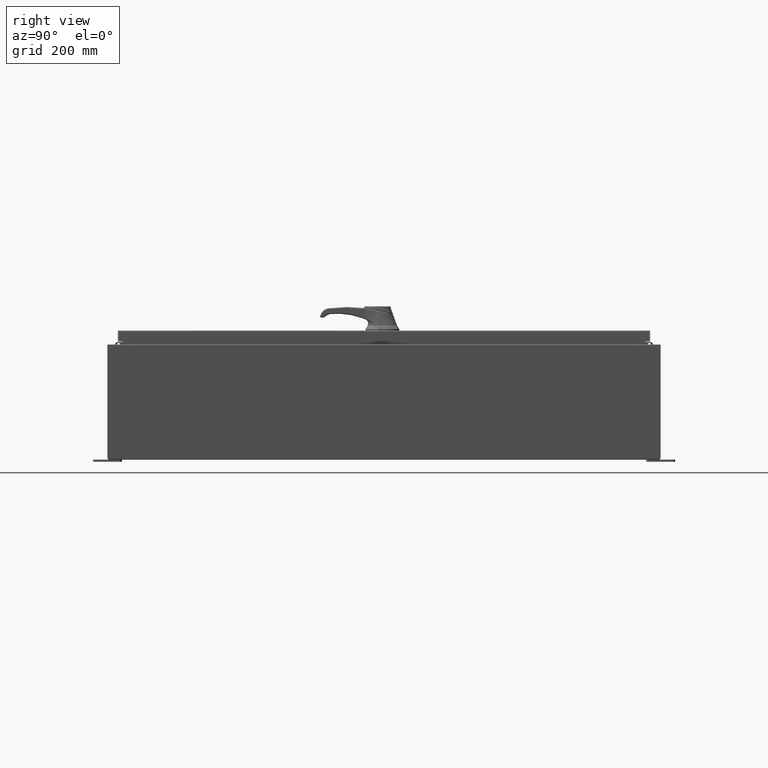
[diagram: clean part render]
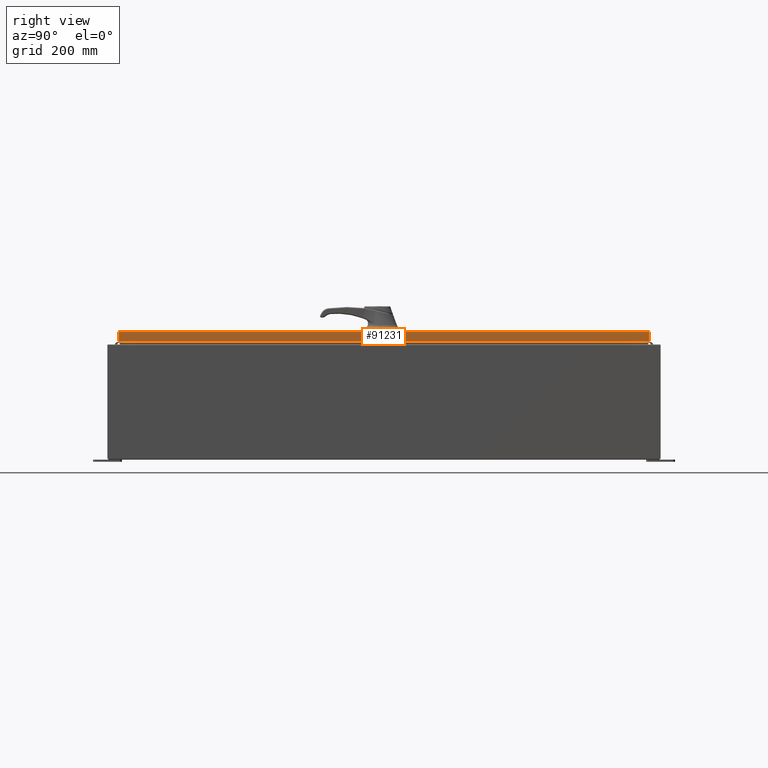
[diagram: same view with one face highlighted and labeled with its STEP entity id]
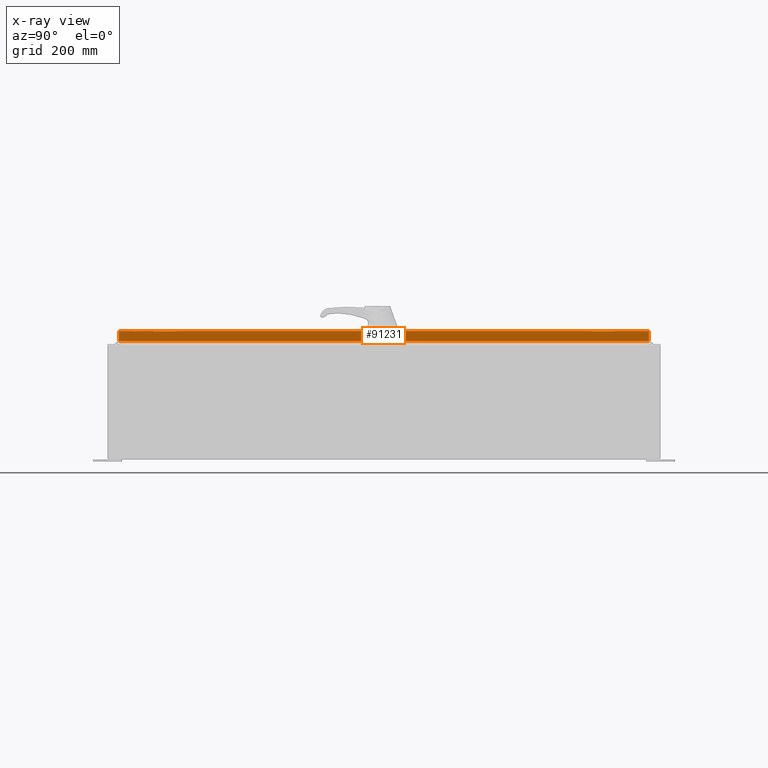
[diagram: x-ray of the same camera — body ghosted, the highlighted face saturated]
A machine part, right view. The second image highlights one B-rep face of the part: STEP entity #91231.
The next image is the same camera in x-ray: the body ghosted, the highlighted face saturated — about 0% of this face is hidden behind the body in this view.
In plain terms, the highlighted planar face has unit normal (1, 0, 0).
Its self-contained STEP definition (entity closure, byte-faithful):
#4995 = VECTOR ( 'NONE', #16505, 39.37007874015748100 ) ;
#6508 = CARTESIAN_POINT ( 'NONE',  ( 17.07799999999999900, 0.0000000000000000000, 4.350948112836224800E-014 ) ) ;
#16505 = DIRECTION ( 'NONE',  ( -2.532419924601866100E-015, -6.982962677686265900E-015, 1.000000000000000000 ) ) ;
#22223 = EDGE_LOOP ( 'NONE', ( #85445, #86889, #98122, #93936 ) ) ;
#22301 = CARTESIAN_POINT ( 'NONE',  ( 17.07799999999999900, -23.00515786437626900, -0.07469999999999980800 ) ) ;
#29092 = CARTESIAN_POINT ( 'NONE',  ( 17.07799999999999900, 0.0000000000000000000, -0.08770000000000008300 ) ) ;
#30249 = VERTEX_POINT ( 'NONE', #100197 ) ;
#33207 = LINE ( 'NONE', #29092, #60767 ) ;
#40034 = VECTOR ( 'NONE', #123669, 39.37007874015748100 ) ;
#42934 = EDGE_CURVE ( 'NONE', #108370, #77594, #60109, .T. ) ;
#47204 = CARTESIAN_POINT ( 'NONE',  ( 17.07799999999999900, 23.00515786437627600, 2.041536398895824600E-013 ) ) ;
#49824 = EDGE_CURVE ( 'NONE', #30249, #57386, #66137, .T. ) ;
#51103 = CARTESIAN_POINT ( 'NONE',  ( 17.07800000000000300, -23.09400000000000100, -0.9376999999999997600 ) ) ;
#52687 = EDGE_CURVE ( 'NONE', #77594, #57386, #33207, .T. ) ;
#52790 = AXIS2_PLACEMENT_3D ( 'NONE', #6508, #131106, #69005 ) ;
#57386 = VERTEX_POINT ( 'NONE', #131852 ) ;
#60109 = LINE ( 'NONE', #47204, #4995 ) ;
#60767 = VECTOR ( 'NONE', #101544, 39.37007874015748100 ) ;
#66137 = LINE ( 'NONE', #22301, #90473 ) ;
#69005 = DIRECTION ( 'NONE',  ( 2.532419924601866100E-015, 0.0000000000000000000, -1.000000000000000000 ) ) ;
#70329 = FACE_OUTER_BOUND ( 'NONE', #22223, .T. ) ;
#77514 = CARTESIAN_POINT ( 'NONE',  ( 17.07799999999999900, 23.00515786437627200, -0.08770000000000008300 ) ) ;
#77594 = VERTEX_POINT ( 'NONE', #77514 ) ;
#85445 = ORIENTED_EDGE ( 'NONE', *, *, #49824, .F. ) ;
#86708 = CARTESIAN_POINT ( 'NONE',  ( 17.07800000000000300, 23.00515786437628000, -0.9376999999999997600 ) ) ;
#86889 = ORIENTED_EDGE ( 'NONE', *, *, #99192, .F. ) ;
#90473 = VECTOR ( 'NONE', #126046, 39.37007874015748100 ) ;
#91231 = ADVANCED_FACE ( 'NONE', ( #70329 ), #99833, .T. ) ;
#93936 = ORIENTED_EDGE ( 'NONE', *, *, #52687, .T. ) ;
#98122 = ORIENTED_EDGE ( 'NONE', *, *, #42934, .T. ) ;
#99192 = EDGE_CURVE ( 'NONE', #108370, #30249, #119518, .T. ) ;
#99833 = PLANE ( 'NONE',  #52790 ) ;
#100197 = CARTESIAN_POINT ( 'NONE',  ( 17.07800000000000300, -23.00515786437626200, -0.9376999999999997600 ) ) ;
#101544 = DIRECTION ( 'NONE',  ( 0.0000000000000000000, -1.000000000000000000, 0.0000000000000000000 ) ) ;
#108370 = VERTEX_POINT ( 'NONE', #86708 ) ;
#119518 = LINE ( 'NONE', #51103, #40034 ) ;
#123669 = DIRECTION ( 'NONE',  ( 0.0000000000000000000, -1.000000000000000000, 0.0000000000000000000 ) ) ;
#126046 = DIRECTION ( 'NONE',  ( -2.532419924601866100E-015, -6.982962677686265900E-015, 1.000000000000000000 ) ) ;
#131106 = DIRECTION ( 'NONE',  ( 1.000000000000000000, 0.0000000000000000000, 2.532419924601866100E-015 ) ) ;
#131852 = CARTESIAN_POINT ( 'NONE',  ( 17.07799999999999900, -23.00515786437626900, -0.08770000000000008300 ) ) ;